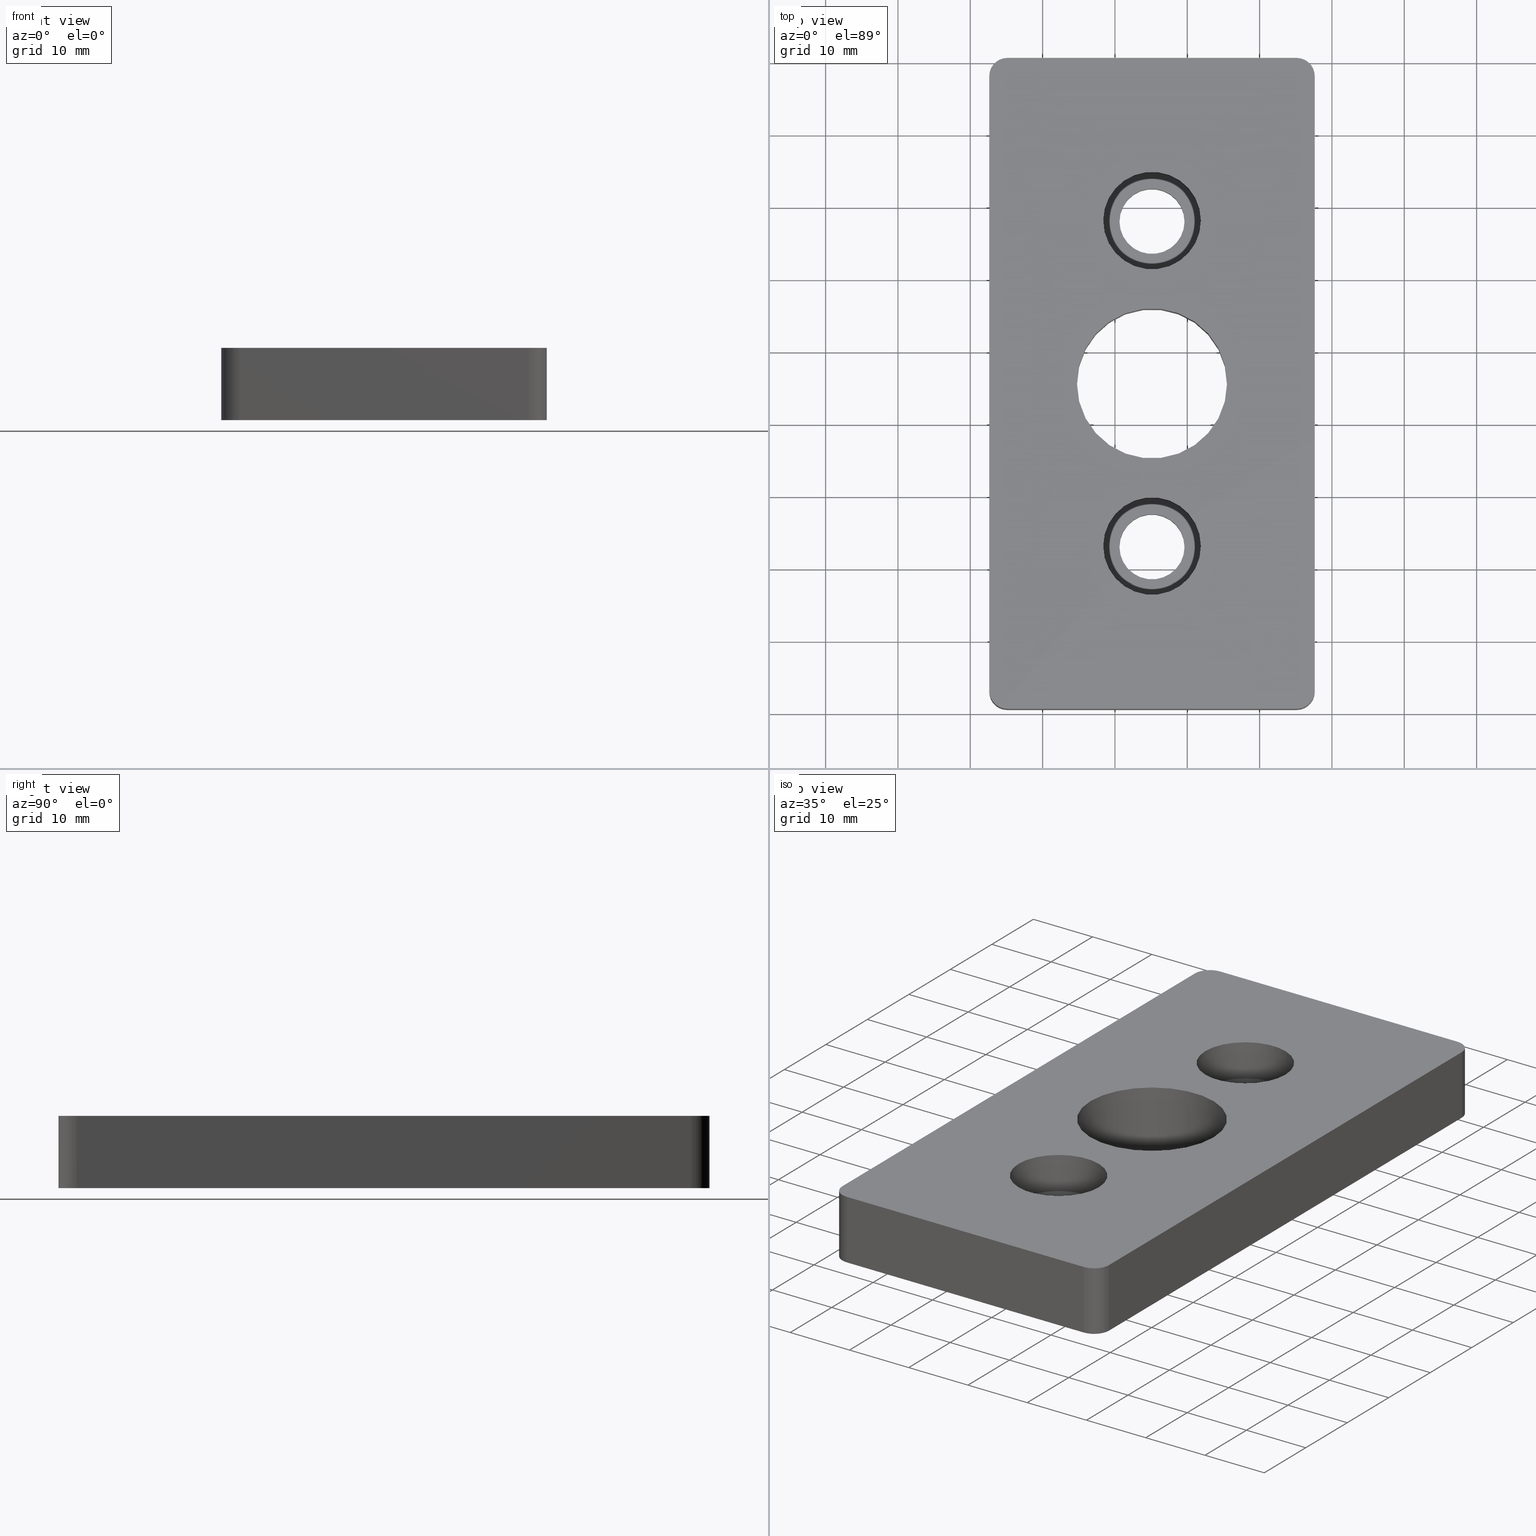
[diagram: canonical four-view strip — front | top / right | iso, engineering-drawing reading convention]
A machine part, canonical four-view strip (front | top / right | iso — engineering-drawing reading convention). The complete STEP part file that produces these views, byte-faithful:
ISO-10303-21;
HEADER;
/* Generated by software containing ST-Developer
 * from STEP Tools, Inc. (www.steptools.com) 
 */

FILE_DESCRIPTION(
/* description */ ('PIASTRA FISS. PIEDI M24 45X90'),
/* implementation_level */ '2;1');

FILE_NAME(
/* name */ 
'Q:\\Catalogo\\2_Accessori Dierre\\Per Download Web e catalogo cartace
o\\CATALOGO PIEDI E SOSTEGNI\\PAGINA 45\\DPSXX0000559.stp',
/* time_stamp */ '2018-11-09T11:43:16+01:00',
/* author */ ('fzagni'),
/* organization */ (''),
/* preprocessor_version */ 'ST-DEVELOPER v16.1',
/* originating_system */ 'Autodesk Inventor 2016',
/* authorisation */ '');

FILE_SCHEMA (('AUTOMOTIVE_DESIGN { 1 0 10303 214 3 1 1 }'));
ENDSEC;

DATA;
#10=MECHANICAL_DESIGN_GEOMETRIC_PRESENTATION_REPRESENTATION('',(#13),#493);
#11=SHAPE_REPRESENTATION_RELATIONSHIP('SRR','None',#502,#12);
#12=ADVANCED_BREP_SHAPE_REPRESENTATION('',(#14),#492);
#13=STYLED_ITEM('',(#511),#14);
#14=MANIFOLD_SOLID_BREP('Solido1',#287);
#15=LINE('',#445,#31);
#16=LINE('',#448,#32);
#17=LINE('',#451,#33);
#18=LINE('',#453,#34);
#19=LINE('',#454,#35);
#20=LINE('',#460,#36);
#21=LINE('',#463,#37);
#22=LINE('',#465,#38);
#23=LINE('',#466,#39);
#24=LINE('',#472,#40);
#25=LINE('',#475,#41);
#26=LINE('',#477,#42);
#27=LINE('',#478,#43);
#28=LINE('',#484,#44);
#29=LINE('',#486,#45);
#30=LINE('',#487,#46);
#31=VECTOR('',#364,10.);
#32=VECTOR('',#367,10.);
#33=VECTOR('',#370,40.);
#34=VECTOR('',#371,40.);
#35=VECTOR('',#372,10.);
#36=VECTOR('',#379,10.);
#37=VECTOR('',#382,85.);
#38=VECTOR('',#383,85.);
#39=VECTOR('',#384,10.);
#40=VECTOR('',#391,10.);
#41=VECTOR('',#394,40.);
#42=VECTOR('',#395,40.);
#43=VECTOR('',#396,10.);
#44=VECTOR('',#403,10.);
#45=VECTOR('',#406,85.);
#46=VECTOR('',#407,85.);
#47=PLANE('',#292);
#48=PLANE('',#299);
#49=PLANE('',#309);
#50=PLANE('',#313);
#51=PLANE('',#317);
#52=PLANE('',#321);
#53=PLANE('',#322);
#54=PLANE('',#323);
#55=FACE_BOUND('',#86,.T.);
#56=FACE_BOUND('',#88,.T.);
#57=FACE_BOUND('',#90,.T.);
#58=FACE_BOUND('',#92,.T.);
#59=FACE_BOUND('',#94,.T.);
#60=FACE_BOUND('',#96,.T.);
#61=FACE_BOUND('',#98,.T.);
#62=FACE_BOUND('',#108,.T.);
#63=FACE_BOUND('',#109,.T.);
#64=FACE_BOUND('',#110,.T.);
#65=FACE_BOUND('',#112,.T.);
#66=FACE_BOUND('',#113,.T.);
#67=FACE_BOUND('',#114,.T.);
#68=FACE_OUTER_BOUND('',#85,.T.);
#69=FACE_OUTER_BOUND('',#87,.T.);
#70=FACE_OUTER_BOUND('',#89,.T.);
#71=FACE_OUTER_BOUND('',#91,.T.);
#72=FACE_OUTER_BOUND('',#93,.T.);
#73=FACE_OUTER_BOUND('',#95,.T.);
#74=FACE_OUTER_BOUND('',#97,.T.);
#75=FACE_OUTER_BOUND('',#99,.T.);
#76=FACE_OUTER_BOUND('',#100,.T.);
#77=FACE_OUTER_BOUND('',#101,.T.);
#78=FACE_OUTER_BOUND('',#102,.T.);
#79=FACE_OUTER_BOUND('',#103,.T.);
#80=FACE_OUTER_BOUND('',#104,.T.);
#81=FACE_OUTER_BOUND('',#105,.T.);
#82=FACE_OUTER_BOUND('',#106,.T.);
#83=FACE_OUTER_BOUND('',#107,.T.);
#84=FACE_OUTER_BOUND('',#111,.T.);
#85=EDGE_LOOP('',(#193));
#86=EDGE_LOOP('',(#194));
#87=EDGE_LOOP('',(#195));
#88=EDGE_LOOP('',(#196));
#89=EDGE_LOOP('',(#197));
#90=EDGE_LOOP('',(#198));
#91=EDGE_LOOP('',(#199));
#92=EDGE_LOOP('',(#200));
#93=EDGE_LOOP('',(#201));
#94=EDGE_LOOP('',(#202));
#95=EDGE_LOOP('',(#203));
#96=EDGE_LOOP('',(#204));
#97=EDGE_LOOP('',(#205));
#98=EDGE_LOOP('',(#206));
#99=EDGE_LOOP('',(#207,#208,#209,#210));
#100=EDGE_LOOP('',(#211,#212,#213,#214));
#101=EDGE_LOOP('',(#215,#216,#217,#218));
#102=EDGE_LOOP('',(#219,#220,#221,#222));
#103=EDGE_LOOP('',(#223,#224,#225,#226));
#104=EDGE_LOOP('',(#227,#228,#229,#230));
#105=EDGE_LOOP('',(#231,#232,#233,#234));
#106=EDGE_LOOP('',(#235,#236,#237,#238));
#107=EDGE_LOOP('',(#239,#240,#241,#242,#243,#244,#245,#246));
#108=EDGE_LOOP('',(#247));
#109=EDGE_LOOP('',(#248));
#110=EDGE_LOOP('',(#249));
#111=EDGE_LOOP('',(#250,#251,#252,#253,#254,#255,#256,#257));
#112=EDGE_LOOP('',(#258));
#113=EDGE_LOOP('',(#259));
#114=EDGE_LOOP('',(#260));
#115=CIRCLE('',#290,10.376);
#116=CIRCLE('',#291,10.376);
#117=CIRCLE('',#293,6.75);
#118=CIRCLE('',#294,4.5);
#119=CIRCLE('',#296,6.75);
#120=CIRCLE('',#298,4.5);
#121=CIRCLE('',#300,6.75);
#122=CIRCLE('',#301,4.5);
#123=CIRCLE('',#303,6.75);
#124=CIRCLE('',#305,4.5);
#125=CIRCLE('',#307,2.5);
#126=CIRCLE('',#308,2.5);
#127=CIRCLE('',#311,2.5);
#128=CIRCLE('',#312,2.5);
#129=CIRCLE('',#315,2.5);
#130=CIRCLE('',#316,2.5);
#131=CIRCLE('',#319,2.5);
#132=CIRCLE('',#320,2.5);
#133=VERTEX_POINT('',#414);
#134=VERTEX_POINT('',#416);
#135=VERTEX_POINT('',#419);
#136=VERTEX_POINT('',#421);
#137=VERTEX_POINT('',#424);
#138=VERTEX_POINT('',#427);
#139=VERTEX_POINT('',#430);
#140=VERTEX_POINT('',#432);
#141=VERTEX_POINT('',#435);
#142=VERTEX_POINT('',#438);
#143=VERTEX_POINT('',#441);
#144=VERTEX_POINT('',#442);
#145=VERTEX_POINT('',#444);
#146=VERTEX_POINT('',#446);
#147=VERTEX_POINT('',#450);
#148=VERTEX_POINT('',#452);
#149=VERTEX_POINT('',#456);
#150=VERTEX_POINT('',#458);
#151=VERTEX_POINT('',#462);
#152=VERTEX_POINT('',#464);
#153=VERTEX_POINT('',#468);
#154=VERTEX_POINT('',#470);
#155=VERTEX_POINT('',#474);
#156=VERTEX_POINT('',#476);
#157=VERTEX_POINT('',#480);
#158=VERTEX_POINT('',#482);
#159=EDGE_CURVE('',#133,#133,#115,.T.);
#160=EDGE_CURVE('',#134,#134,#116,.T.);
#161=EDGE_CURVE('',#135,#135,#117,.T.);
#162=EDGE_CURVE('',#136,#136,#118,.T.);
#163=EDGE_CURVE('',#137,#137,#119,.T.);
#164=EDGE_CURVE('',#138,#138,#120,.T.);
#165=EDGE_CURVE('',#139,#139,#121,.T.);
#166=EDGE_CURVE('',#140,#140,#122,.T.);
#167=EDGE_CURVE('',#141,#141,#123,.T.);
#168=EDGE_CURVE('',#142,#142,#124,.T.);
#169=EDGE_CURVE('',#143,#144,#125,.T.);
#170=EDGE_CURVE('',#144,#145,#15,.T.);
#171=EDGE_CURVE('',#146,#145,#126,.T.);
#172=EDGE_CURVE('',#143,#146,#16,.T.);
#173=EDGE_CURVE('',#147,#143,#17,.T.);
#174=EDGE_CURVE('',#148,#146,#18,.T.);
#175=EDGE_CURVE('',#147,#148,#19,.T.);
#176=EDGE_CURVE('',#149,#147,#127,.T.);
#177=EDGE_CURVE('',#150,#148,#128,.T.);
#178=EDGE_CURVE('',#149,#150,#20,.T.);
#179=EDGE_CURVE('',#151,#149,#21,.T.);
#180=EDGE_CURVE('',#152,#150,#22,.T.);
#181=EDGE_CURVE('',#151,#152,#23,.T.);
#182=EDGE_CURVE('',#153,#151,#129,.T.);
#183=EDGE_CURVE('',#154,#152,#130,.T.);
#184=EDGE_CURVE('',#153,#154,#24,.T.);
#185=EDGE_CURVE('',#155,#153,#25,.T.);
#186=EDGE_CURVE('',#156,#154,#26,.T.);
#187=EDGE_CURVE('',#155,#156,#27,.T.);
#188=EDGE_CURVE('',#157,#155,#131,.T.);
#189=EDGE_CURVE('',#158,#156,#132,.T.);
#190=EDGE_CURVE('',#157,#158,#28,.T.);
#191=EDGE_CURVE('',#144,#157,#29,.T.);
#192=EDGE_CURVE('',#145,#158,#30,.T.);
#193=ORIENTED_EDGE('',*,*,#159,.F.);
#194=ORIENTED_EDGE('',*,*,#160,.F.);
#195=ORIENTED_EDGE('',*,*,#161,.T.);
#196=ORIENTED_EDGE('',*,*,#162,.F.);
#197=ORIENTED_EDGE('',*,*,#163,.F.);
#198=ORIENTED_EDGE('',*,*,#161,.F.);
#199=ORIENTED_EDGE('',*,*,#164,.F.);
#200=ORIENTED_EDGE('',*,*,#162,.T.);
#201=ORIENTED_EDGE('',*,*,#165,.T.);
#202=ORIENTED_EDGE('',*,*,#166,.F.);
#203=ORIENTED_EDGE('',*,*,#167,.F.);
#204=ORIENTED_EDGE('',*,*,#165,.F.);
#205=ORIENTED_EDGE('',*,*,#168,.F.);
#206=ORIENTED_EDGE('',*,*,#166,.T.);
#207=ORIENTED_EDGE('',*,*,#169,.T.);
#208=ORIENTED_EDGE('',*,*,#170,.T.);
#209=ORIENTED_EDGE('',*,*,#171,.F.);
#210=ORIENTED_EDGE('',*,*,#172,.F.);
#211=ORIENTED_EDGE('',*,*,#173,.T.);
#212=ORIENTED_EDGE('',*,*,#172,.T.);
#213=ORIENTED_EDGE('',*,*,#174,.F.);
#214=ORIENTED_EDGE('',*,*,#175,.F.);
#215=ORIENTED_EDGE('',*,*,#176,.T.);
#216=ORIENTED_EDGE('',*,*,#175,.T.);
#217=ORIENTED_EDGE('',*,*,#177,.F.);
#218=ORIENTED_EDGE('',*,*,#178,.F.);
#219=ORIENTED_EDGE('',*,*,#179,.T.);
#220=ORIENTED_EDGE('',*,*,#178,.T.);
#221=ORIENTED_EDGE('',*,*,#180,.F.);
#222=ORIENTED_EDGE('',*,*,#181,.F.);
#223=ORIENTED_EDGE('',*,*,#182,.T.);
#224=ORIENTED_EDGE('',*,*,#181,.T.);
#225=ORIENTED_EDGE('',*,*,#183,.F.);
#226=ORIENTED_EDGE('',*,*,#184,.F.);
#227=ORIENTED_EDGE('',*,*,#185,.T.);
#228=ORIENTED_EDGE('',*,*,#184,.T.);
#229=ORIENTED_EDGE('',*,*,#186,.F.);
#230=ORIENTED_EDGE('',*,*,#187,.F.);
#231=ORIENTED_EDGE('',*,*,#188,.T.);
#232=ORIENTED_EDGE('',*,*,#187,.T.);
#233=ORIENTED_EDGE('',*,*,#189,.F.);
#234=ORIENTED_EDGE('',*,*,#190,.F.);
#235=ORIENTED_EDGE('',*,*,#191,.T.);
#236=ORIENTED_EDGE('',*,*,#190,.T.);
#237=ORIENTED_EDGE('',*,*,#192,.F.);
#238=ORIENTED_EDGE('',*,*,#170,.F.);
#239=ORIENTED_EDGE('',*,*,#192,.T.);
#240=ORIENTED_EDGE('',*,*,#189,.T.);
#241=ORIENTED_EDGE('',*,*,#186,.T.);
#242=ORIENTED_EDGE('',*,*,#183,.T.);
#243=ORIENTED_EDGE('',*,*,#180,.T.);
#244=ORIENTED_EDGE('',*,*,#177,.T.);
#245=ORIENTED_EDGE('',*,*,#174,.T.);
#246=ORIENTED_EDGE('',*,*,#171,.T.);
#247=ORIENTED_EDGE('',*,*,#160,.T.);
#248=ORIENTED_EDGE('',*,*,#163,.T.);
#249=ORIENTED_EDGE('',*,*,#167,.T.);
#250=ORIENTED_EDGE('',*,*,#191,.F.);
#251=ORIENTED_EDGE('',*,*,#169,.F.);
#252=ORIENTED_EDGE('',*,*,#173,.F.);
#253=ORIENTED_EDGE('',*,*,#176,.F.);
#254=ORIENTED_EDGE('',*,*,#179,.F.);
#255=ORIENTED_EDGE('',*,*,#182,.F.);
#256=ORIENTED_EDGE('',*,*,#185,.F.);
#257=ORIENTED_EDGE('',*,*,#188,.F.);
#258=ORIENTED_EDGE('',*,*,#159,.T.);
#259=ORIENTED_EDGE('',*,*,#164,.T.);
#260=ORIENTED_EDGE('',*,*,#168,.T.);
#261=CYLINDRICAL_SURFACE('',#289,10.376);
#262=CYLINDRICAL_SURFACE('',#295,6.75);
#263=CYLINDRICAL_SURFACE('',#297,4.5);
#264=CYLINDRICAL_SURFACE('',#302,6.75);
#265=CYLINDRICAL_SURFACE('',#304,4.5);
#266=CYLINDRICAL_SURFACE('',#306,2.5);
#267=CYLINDRICAL_SURFACE('',#310,2.5);
#268=CYLINDRICAL_SURFACE('',#314,2.5);
#269=CYLINDRICAL_SURFACE('',#318,2.5);
#270=ADVANCED_FACE('',(#68,#55),#261,.F.);
#271=ADVANCED_FACE('',(#69,#56),#47,.T.);
#272=ADVANCED_FACE('',(#70,#57),#262,.F.);
#273=ADVANCED_FACE('',(#71,#58),#263,.F.);
#274=ADVANCED_FACE('',(#72,#59),#48,.T.);
#275=ADVANCED_FACE('',(#73,#60),#264,.F.);
#276=ADVANCED_FACE('',(#74,#61),#265,.F.);
#277=ADVANCED_FACE('',(#75),#266,.T.);
#278=ADVANCED_FACE('',(#76),#49,.T.);
#279=ADVANCED_FACE('',(#77),#267,.T.);
#280=ADVANCED_FACE('',(#78),#50,.T.);
#281=ADVANCED_FACE('',(#79),#268,.T.);
#282=ADVANCED_FACE('',(#80),#51,.T.);
#283=ADVANCED_FACE('',(#81),#269,.T.);
#284=ADVANCED_FACE('',(#82),#52,.T.);
#285=ADVANCED_FACE('',(#83,#62,#63,#64),#53,.T.);
#286=ADVANCED_FACE('',(#84,#65,#66,#67),#54,.F.);
#287=CLOSED_SHELL('',(#270,#271,#272,#273,#274,#275,#276,#277,#278,#279,
#280,#281,#282,#283,#284,#285,#286));
#288=AXIS2_PLACEMENT_3D('placement',#412,#324,#325);
#289=AXIS2_PLACEMENT_3D('',#413,#326,#327);
#290=AXIS2_PLACEMENT_3D('',#415,#328,#329);
#291=AXIS2_PLACEMENT_3D('',#417,#330,#331);
#292=AXIS2_PLACEMENT_3D('',#418,#332,#333);
#293=AXIS2_PLACEMENT_3D('',#420,#334,#335);
#294=AXIS2_PLACEMENT_3D('',#422,#336,#337);
#295=AXIS2_PLACEMENT_3D('',#423,#338,#339);
#296=AXIS2_PLACEMENT_3D('',#425,#340,#341);
#297=AXIS2_PLACEMENT_3D('',#426,#342,#343);
#298=AXIS2_PLACEMENT_3D('',#428,#344,#345);
#299=AXIS2_PLACEMENT_3D('',#429,#346,#347);
#300=AXIS2_PLACEMENT_3D('',#431,#348,#349);
#301=AXIS2_PLACEMENT_3D('',#433,#350,#351);
#302=AXIS2_PLACEMENT_3D('',#434,#352,#353);
#303=AXIS2_PLACEMENT_3D('',#436,#354,#355);
#304=AXIS2_PLACEMENT_3D('',#437,#356,#357);
#305=AXIS2_PLACEMENT_3D('',#439,#358,#359);
#306=AXIS2_PLACEMENT_3D('',#440,#360,#361);
#307=AXIS2_PLACEMENT_3D('',#443,#362,#363);
#308=AXIS2_PLACEMENT_3D('',#447,#365,#366);
#309=AXIS2_PLACEMENT_3D('',#449,#368,#369);
#310=AXIS2_PLACEMENT_3D('',#455,#373,#374);
#311=AXIS2_PLACEMENT_3D('',#457,#375,#376);
#312=AXIS2_PLACEMENT_3D('',#459,#377,#378);
#313=AXIS2_PLACEMENT_3D('',#461,#380,#381);
#314=AXIS2_PLACEMENT_3D('',#467,#385,#386);
#315=AXIS2_PLACEMENT_3D('',#469,#387,#388);
#316=AXIS2_PLACEMENT_3D('',#471,#389,#390);
#317=AXIS2_PLACEMENT_3D('',#473,#392,#393);
#318=AXIS2_PLACEMENT_3D('',#479,#397,#398);
#319=AXIS2_PLACEMENT_3D('',#481,#399,#400);
#320=AXIS2_PLACEMENT_3D('',#483,#401,#402);
#321=AXIS2_PLACEMENT_3D('',#485,#404,#405);
#322=AXIS2_PLACEMENT_3D('',#488,#408,#409);
#323=AXIS2_PLACEMENT_3D('',#489,#410,#411);
#324=DIRECTION('axis',(0.,0.,1.));
#325=DIRECTION('refdir',(1.,0.,0.));
#326=DIRECTION('center_axis',(0.,0.,1.));
#327=DIRECTION('ref_axis',(1.,0.,0.));
#328=DIRECTION('center_axis',(0.,0.,1.));
#329=DIRECTION('ref_axis',(1.,0.,0.));
#330=DIRECTION('center_axis',(0.,0.,-1.));
#331=DIRECTION('ref_axis',(1.,0.,0.));
#332=DIRECTION('center_axis',(0.,0.,1.));
#333=DIRECTION('ref_axis',(1.,0.,0.));
#334=DIRECTION('center_axis',(0.,0.,1.));
#335=DIRECTION('ref_axis',(1.,0.,0.));
#336=DIRECTION('center_axis',(0.,0.,1.));
#337=DIRECTION('ref_axis',(1.,0.,0.));
#338=DIRECTION('center_axis',(0.,0.,1.));
#339=DIRECTION('ref_axis',(1.,0.,0.));
#340=DIRECTION('center_axis',(0.,0.,-1.));
#341=DIRECTION('ref_axis',(1.,0.,0.));
#342=DIRECTION('center_axis',(0.,0.,1.));
#343=DIRECTION('ref_axis',(1.,0.,0.));
#344=DIRECTION('center_axis',(0.,0.,1.));
#345=DIRECTION('ref_axis',(1.,0.,0.));
#346=DIRECTION('center_axis',(0.,0.,1.));
#347=DIRECTION('ref_axis',(1.,0.,0.));
#348=DIRECTION('center_axis',(0.,0.,1.));
#349=DIRECTION('ref_axis',(1.,0.,0.));
#350=DIRECTION('center_axis',(0.,0.,1.));
#351=DIRECTION('ref_axis',(1.,0.,0.));
#352=DIRECTION('center_axis',(0.,0.,1.));
#353=DIRECTION('ref_axis',(1.,0.,0.));
#354=DIRECTION('center_axis',(0.,0.,-1.));
#355=DIRECTION('ref_axis',(1.,0.,0.));
#356=DIRECTION('center_axis',(0.,0.,1.));
#357=DIRECTION('ref_axis',(1.,0.,0.));
#358=DIRECTION('center_axis',(0.,0.,1.));
#359=DIRECTION('ref_axis',(1.,0.,0.));
#360=DIRECTION('center_axis',(0.,0.,1.));
#361=DIRECTION('ref_axis',(0.,1.,0.));
#362=DIRECTION('center_axis',(0.,0.,1.));
#363=DIRECTION('ref_axis',(0.,1.,0.));
#364=DIRECTION('',(0.,0.,1.));
#365=DIRECTION('center_axis',(0.,0.,1.));
#366=DIRECTION('ref_axis',(0.,1.,0.));
#367=DIRECTION('',(0.,0.,1.));
#368=DIRECTION('center_axis',(0.,1.,0.));
#369=DIRECTION('ref_axis',(-1.,0.,0.));
#370=DIRECTION('',(-1.,0.,0.));
#371=DIRECTION('',(-1.,0.,0.));
#372=DIRECTION('',(0.,0.,1.));
#373=DIRECTION('center_axis',(0.,0.,1.));
#374=DIRECTION('ref_axis',(1.,0.,0.));
#375=DIRECTION('center_axis',(0.,0.,1.));
#376=DIRECTION('ref_axis',(1.,0.,0.));
#377=DIRECTION('center_axis',(0.,0.,1.));
#378=DIRECTION('ref_axis',(1.,0.,0.));
#379=DIRECTION('',(0.,0.,1.));
#380=DIRECTION('center_axis',(1.,0.,0.));
#381=DIRECTION('ref_axis',(0.,1.,0.));
#382=DIRECTION('',(0.,1.,0.));
#383=DIRECTION('',(0.,1.,0.));
#384=DIRECTION('',(0.,0.,1.));
#385=DIRECTION('center_axis',(0.,0.,1.));
#386=DIRECTION('ref_axis',(0.,-1.,0.));
#387=DIRECTION('center_axis',(0.,0.,1.));
#388=DIRECTION('ref_axis',(0.,-1.,0.));
#389=DIRECTION('center_axis',(0.,0.,1.));
#390=DIRECTION('ref_axis',(0.,-1.,0.));
#391=DIRECTION('',(0.,0.,1.));
#392=DIRECTION('center_axis',(0.,-1.,0.));
#393=DIRECTION('ref_axis',(1.,0.,0.));
#394=DIRECTION('',(1.,0.,0.));
#395=DIRECTION('',(1.,0.,0.));
#396=DIRECTION('',(0.,0.,1.));
#397=DIRECTION('center_axis',(0.,0.,1.));
#398=DIRECTION('ref_axis',(-1.,0.,0.));
#399=DIRECTION('center_axis',(0.,0.,1.));
#400=DIRECTION('ref_axis',(-1.,0.,0.));
#401=DIRECTION('center_axis',(0.,0.,1.));
#402=DIRECTION('ref_axis',(-1.,0.,0.));
#403=DIRECTION('',(0.,0.,1.));
#404=DIRECTION('center_axis',(-1.,-3.33066907387547E-16,0.));
#405=DIRECTION('ref_axis',(3.10862446895044E-16,-1.,0.));
#406=DIRECTION('',(3.33066907387547E-16,-1.,0.));
#407=DIRECTION('',(3.33066907387547E-16,-1.,0.));
#408=DIRECTION('center_axis',(0.,0.,1.));
#409=DIRECTION('ref_axis',(1.,0.,0.));
#410=DIRECTION('center_axis',(0.,0.,1.));
#411=DIRECTION('ref_axis',(1.,0.,0.));
#412=CARTESIAN_POINT('',(0.,0.,0.));
#413=CARTESIAN_POINT('Origin',(25.1256764380845,45.6013335529333,-91.1187420807834));
#414=CARTESIAN_POINT('',(14.7496764380845,45.6013335529333,0.));
#415=CARTESIAN_POINT('Origin',(25.1256764380845,45.6013335529333,0.));
#416=CARTESIAN_POINT('',(35.5016764380845,45.6013335529333,10.));
#417=CARTESIAN_POINT('Origin',(25.1256764380845,45.6013335529333,10.));
#418=CARTESIAN_POINT('Origin',(25.1256764380845,68.1013335529333,4.5));
#419=CARTESIAN_POINT('',(31.8756764380845,68.1013335529333,4.5));
#420=CARTESIAN_POINT('Origin',(25.1256764380845,68.1013335529333,4.5));
#421=CARTESIAN_POINT('',(20.6256764380845,68.1013335529333,4.49999999999999));
#422=CARTESIAN_POINT('Origin',(25.1256764380845,68.1013335529333,4.49999999999999));
#423=CARTESIAN_POINT('Origin',(25.1256764380845,68.1013335529333,7.25));
#424=CARTESIAN_POINT('',(31.8756764380845,68.1013335529333,10.));
#425=CARTESIAN_POINT('Origin',(25.1256764380845,68.1013335529333,10.));
#426=CARTESIAN_POINT('Origin',(25.1256764380845,68.1013335529333,-91.1187420807834));
#427=CARTESIAN_POINT('',(20.6256764380845,68.1013335529333,0.));
#428=CARTESIAN_POINT('Origin',(25.1256764380845,68.1013335529333,0.));
#429=CARTESIAN_POINT('Origin',(25.1256764380845,23.1013335529333,4.5));
#430=CARTESIAN_POINT('',(31.8756764380845,23.1013335529333,4.5));
#431=CARTESIAN_POINT('Origin',(25.1256764380845,23.1013335529333,4.5));
#432=CARTESIAN_POINT('',(20.6256764380845,23.1013335529333,4.49999999999999));
#433=CARTESIAN_POINT('Origin',(25.1256764380845,23.1013335529333,4.49999999999999));
#434=CARTESIAN_POINT('Origin',(25.1256764380845,23.1013335529333,7.25));
#435=CARTESIAN_POINT('',(31.8756764380845,23.1013335529333,10.));
#436=CARTESIAN_POINT('Origin',(25.1256764380845,23.1013335529333,10.));
#437=CARTESIAN_POINT('Origin',(25.1256764380845,23.1013335529333,-91.1187420807834));
#438=CARTESIAN_POINT('',(20.6256764380845,23.1013335529333,0.));
#439=CARTESIAN_POINT('Origin',(25.1256764380845,23.1013335529333,0.));
#440=CARTESIAN_POINT('Origin',(5.12567643808447,88.1013335529333,0.));
#441=CARTESIAN_POINT('',(5.12567643808447,90.6013335529333,0.));
#442=CARTESIAN_POINT('',(2.62567643808447,88.1013335529333,0.));
#443=CARTESIAN_POINT('Origin',(5.12567643808447,88.1013335529333,0.));
#444=CARTESIAN_POINT('',(2.62567643808447,88.1013335529333,10.));
#445=CARTESIAN_POINT('',(2.62567643808447,88.1013335529333,0.));
#446=CARTESIAN_POINT('',(5.12567643808447,90.6013335529333,10.));
#447=CARTESIAN_POINT('Origin',(5.12567643808447,88.1013335529333,10.));
#448=CARTESIAN_POINT('',(5.12567643808447,90.6013335529333,0.));
#449=CARTESIAN_POINT('Origin',(45.1256764380845,90.6013335529333,0.));
#450=CARTESIAN_POINT('',(45.1256764380845,90.6013335529333,0.));
#451=CARTESIAN_POINT('',(45.1256764380845,90.6013335529333,0.));
#452=CARTESIAN_POINT('',(45.1256764380845,90.6013335529333,10.));
#453=CARTESIAN_POINT('',(45.1256764380845,90.6013335529333,10.));
#454=CARTESIAN_POINT('',(45.1256764380845,90.6013335529333,0.));
#455=CARTESIAN_POINT('Origin',(45.1256764380845,88.1013335529333,0.));
#456=CARTESIAN_POINT('',(47.6256764380845,88.1013335529333,0.));
#457=CARTESIAN_POINT('Origin',(45.1256764380845,88.1013335529333,0.));
#458=CARTESIAN_POINT('',(47.6256764380845,88.1013335529333,10.));
#459=CARTESIAN_POINT('Origin',(45.1256764380845,88.1013335529333,10.));
#460=CARTESIAN_POINT('',(47.6256764380845,88.1013335529333,0.));
#461=CARTESIAN_POINT('Origin',(47.6256764380845,3.10133355293328,0.));
#462=CARTESIAN_POINT('',(47.6256764380845,3.10133355293328,0.));
#463=CARTESIAN_POINT('',(47.6256764380845,3.10133355293328,0.));
#464=CARTESIAN_POINT('',(47.6256764380845,3.10133355293328,10.));
#465=CARTESIAN_POINT('',(47.6256764380845,3.10133355293328,10.));
#466=CARTESIAN_POINT('',(47.6256764380845,3.10133355293328,0.));
#467=CARTESIAN_POINT('Origin',(45.1256764380845,3.10133355293328,0.));
#468=CARTESIAN_POINT('',(45.1256764380845,0.601333552933284,0.));
#469=CARTESIAN_POINT('Origin',(45.1256764380845,3.10133355293328,0.));
#470=CARTESIAN_POINT('',(45.1256764380845,0.601333552933276,10.));
#471=CARTESIAN_POINT('Origin',(45.1256764380845,3.10133355293328,10.));
#472=CARTESIAN_POINT('',(45.1256764380845,0.601333552933284,0.));
#473=CARTESIAN_POINT('Origin',(5.1256764380845,0.601333552933284,0.));
#474=CARTESIAN_POINT('',(5.1256764380845,0.601333552933284,0.));
#475=CARTESIAN_POINT('',(5.1256764380845,0.601333552933284,0.));
#476=CARTESIAN_POINT('',(5.1256764380845,0.601333552933276,10.));
#477=CARTESIAN_POINT('',(5.1256764380845,0.601333552933284,10.));
#478=CARTESIAN_POINT('',(5.1256764380845,0.601333552933284,0.));
#479=CARTESIAN_POINT('Origin',(5.1256764380845,3.10133355293328,0.));
#480=CARTESIAN_POINT('',(2.6256764380845,3.10133355293328,0.));
#481=CARTESIAN_POINT('Origin',(5.1256764380845,3.10133355293328,0.));
#482=CARTESIAN_POINT('',(2.6256764380845,3.10133355293328,10.));
#483=CARTESIAN_POINT('Origin',(5.1256764380845,3.10133355293328,10.));
#484=CARTESIAN_POINT('',(2.6256764380845,3.10133355293328,0.));
#485=CARTESIAN_POINT('Origin',(2.62567643808447,88.1013335529333,0.));
#486=CARTESIAN_POINT('',(2.62567643808447,88.1013335529333,0.));
#487=CARTESIAN_POINT('',(2.62567643808447,88.1013335529333,10.));
#488=CARTESIAN_POINT('Origin',(25.1256764380845,45.6013335529333,10.));
#489=CARTESIAN_POINT('Origin',(25.1256764380845,45.6013335529333,0.));
#490=UNCERTAINTY_MEASURE_WITH_UNIT(LENGTH_MEASURE(0.01),#494,
'DISTANCE_ACCURACY_VALUE',
'Maximum model space distance between geometric entities at asserted c
onnectivities');
#491=UNCERTAINTY_MEASURE_WITH_UNIT(LENGTH_MEASURE(1.E-6),#494,
'DISTANCE_ACCURACY_VALUE',
'Maximum model space distance between geometric entities at asserted c
onnectivities');
#492=(
GEOMETRIC_REPRESENTATION_CONTEXT(3)
GLOBAL_UNCERTAINTY_ASSIGNED_CONTEXT((#490))
GLOBAL_UNIT_ASSIGNED_CONTEXT((#494,#497,#495))
REPRESENTATION_CONTEXT('','3D')
);
#493=(
GEOMETRIC_REPRESENTATION_CONTEXT(3)
GLOBAL_UNCERTAINTY_ASSIGNED_CONTEXT((#491))
GLOBAL_UNIT_ASSIGNED_CONTEXT((#494,#497,#495))
REPRESENTATION_CONTEXT('','3D')
);
#494=(
LENGTH_UNIT()
NAMED_UNIT(*)
SI_UNIT(.MILLI.,.METRE.)
);
#495=(
NAMED_UNIT(*)
SI_UNIT($,.STERADIAN.)
SOLID_ANGLE_UNIT()
);
#496=DIMENSIONAL_EXPONENTS(0.,0.,0.,0.,0.,0.,0.);
#497=(
CONVERSION_BASED_UNIT('degree',#499)
NAMED_UNIT(#496)
PLANE_ANGLE_UNIT()
);
#498=(
NAMED_UNIT(*)
PLANE_ANGLE_UNIT()
SI_UNIT($,.RADIAN.)
);
#499=PLANE_ANGLE_MEASURE_WITH_UNIT(PLANE_ANGLE_MEASURE(0.01745329252),#498);
#500=SHAPE_DEFINITION_REPRESENTATION(#501,#502);
#501=PRODUCT_DEFINITION_SHAPE('',$,#504);
#502=SHAPE_REPRESENTATION('',(#288),#492);
#503=PRODUCT_DEFINITION_CONTEXT('part definition',#508,'design');
#504=PRODUCT_DEFINITION('DPSXX0000559 (31.106.01)',
'DPSXX0000559 (31.106.01)',#505,#503);
#505=PRODUCT_DEFINITION_FORMATION('','A',#510);
#506=PRODUCT_RELATED_PRODUCT_CATEGORY('DPSXX0000559 (31.106.01)',
'DPSXX0000559 (31.106.01)',(#510));
#507=APPLICATION_PROTOCOL_DEFINITION('international standard',
'automotive_design',2009,#508);
#508=APPLICATION_CONTEXT(
'Core Data for Automotive Mechanical Design Process');
#509=PRODUCT_CONTEXT('part definition',#508,'mechanical');
#510=PRODUCT('DPSXX0000559 (31.106.01)','DPSXX0000559 (31.106.01)',$,(#509));
#511=PRESENTATION_STYLE_ASSIGNMENT((#512));
#512=SURFACE_STYLE_USAGE(.BOTH.,#513);
#513=SURFACE_SIDE_STYLE('',(#514));
#514=SURFACE_STYLE_FILL_AREA(#515);
#515=FILL_AREA_STYLE('',(#516));
#516=FILL_AREA_STYLE_COLOUR('',#517);
#517=COLOUR_RGB('',0.313725490196078,0.313725490196078,0.313725490196078);
ENDSEC;
END-ISO-10303-21;
